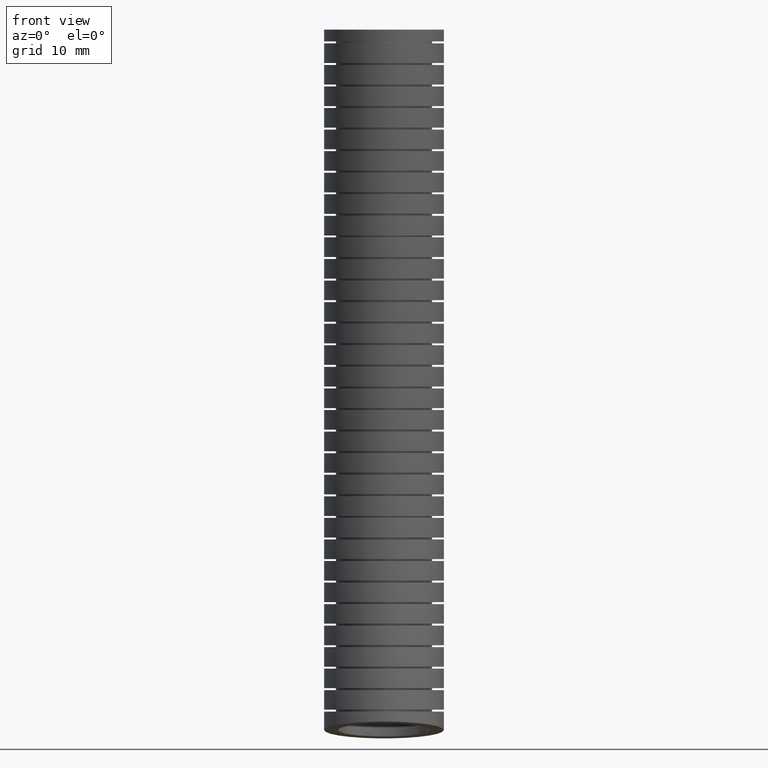
[diagram: clean part render]
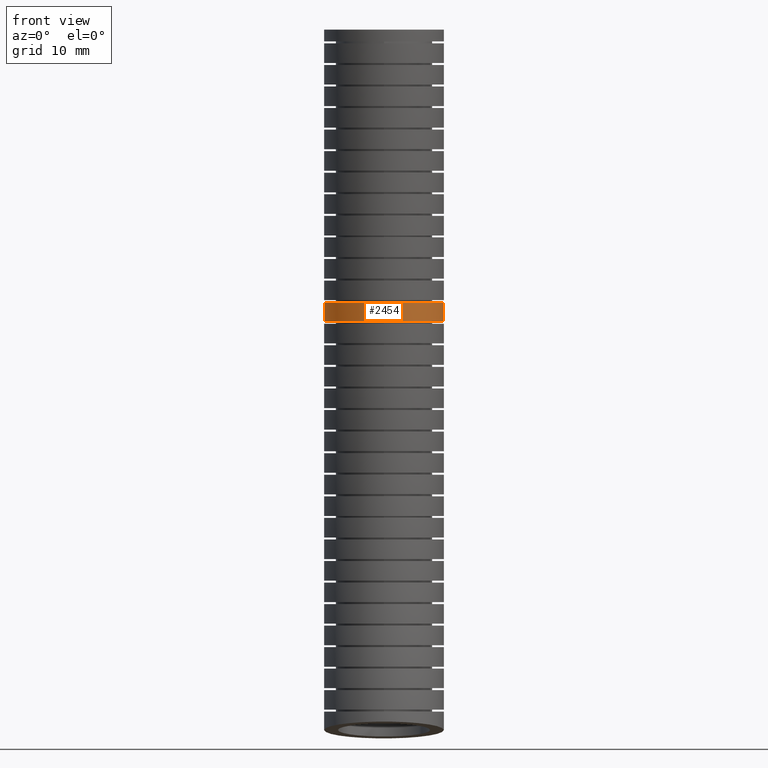
[diagram: same view with one face highlighted and labeled with its STEP entity id]
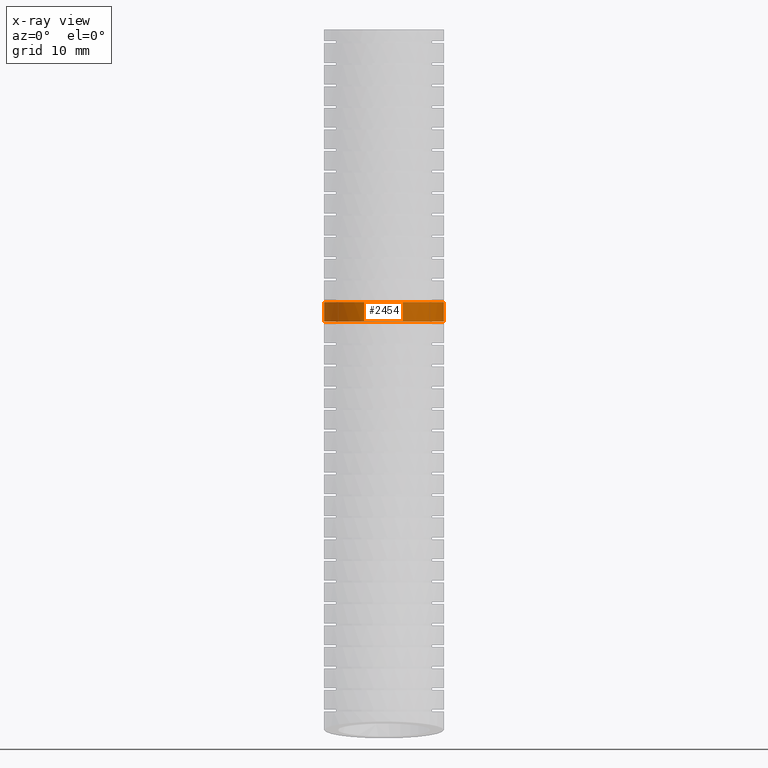
[diagram: x-ray of the same camera — body ghosted, the highlighted face saturated]
A machine part, front view. The second image highlights one B-rep face of the part: STEP entity #2454.
The next image is the same camera in x-ray: the body ghosted, the highlighted face saturated — about 0% of this face is hidden behind the body in this view.
In plain terms, the highlighted face is a freeform B-spline surface patch.
Its self-contained STEP definition (entity closure, byte-faithful):
#2269 = EDGE_LOOP ( 'NONE', ( #6516, #6518, #6512, #4524 ) ) ;
#2454 = ADVANCED_FACE ( 'NONE', ( #6974 ), #7051, .T. ) ;
#2818 = EDGE_CURVE ( 'NONE', #6515, #4520, #7166, .T. ) ;
#4519 = EDGE_CURVE ( 'NONE', #6517, #4520, #14255, .T. ) ;
#4520 = VERTEX_POINT ( 'NONE', #14256 ) ;
#4524 = ORIENTED_EDGE ( 'NONE', *, *, #2818, .F. ) ;
#6512 = ORIENTED_EDGE ( 'NONE', *, *, #4519, .T. ) ;
#6513 = VERTEX_POINT ( 'NONE', #11764 ) ;
#6514 = EDGE_CURVE ( 'NONE', #6515, #6513, #11808, .T. ) ;
#6515 = VERTEX_POINT ( 'NONE', #11823 ) ;
#6516 = ORIENTED_EDGE ( 'NONE', *, *, #6514, .T. ) ;
#6517 = VERTEX_POINT ( 'NONE', #11809 ) ;
#6518 = ORIENTED_EDGE ( 'NONE', *, *, #6519, .T. ) ;
#6519 = EDGE_CURVE ( 'NONE', #6513, #6517, #11848, .T. ) ;
#6806 = CARTESIAN_POINT ( 'NONE',  ( 0.3049999999999999400, 0.6446003076157559300, -2.916786610132277200 ) ) ;
#6807 = CARTESIAN_POINT ( 'NONE',  ( 0.3050000000000000500, 0.6875905811525232500, -1.687708987936889400 ) ) ;
#6808 = CARTESIAN_POINT ( 'NONE',  ( 0.3050000000000000500, 0.6410401296320993300, -0.6751683643642422100 ) ) ;
#6851 = CARTESIAN_POINT ( 'NONE',  ( 0.3049999999999999400, -0.01189670328115252300, -3.380058092153300100 ) ) ;
#6852 = CARTESIAN_POINT ( 'NONE',  ( 0.3049999999999999900, 0.03783273064349424600, -2.858291051460112500 ) ) ;
#6853 = CARTESIAN_POINT ( 'NONE',  ( 0.3049999999999999900, 0.07694042471324438700, -1.669468061939300500 ) ) ;
#6854 = CARTESIAN_POINT ( 'NONE',  ( 0.3050000000000000500, 0.03078003440073750300, -0.6678710777714059700 ) ) ;
#6855 = CARTESIAN_POINT ( 'NONE',  ( 0.3050000000000000500, 0.0000000000000000000, 0.0000000000000000000 ) ) ;
#6856 = CARTESIAN_POINT ( 'NONE',  ( 0.3049999999999999400, 0.5739397472009051300, -3.655771683852579600 ) ) ;
#6857 = CARTESIAN_POINT ( 'NONE',  ( 0.3049999999999999400, 0.5927977391964371900, -3.458550284486119800 ) ) ;
#6974 = FACE_OUTER_BOUND ( 'NONE', #2269, .T. ) ;
#7051 =( BOUNDED_SURFACE ( )  B_SPLINE_SURFACE ( 3, 3, ( 
 ( #7096, #7095, #7094, #7093, #7092, #7091 ),
 ( #7090, #7089, #7088, #7087, #7086, #7085 ),
 ( #7084, #7083, #7082, #7081, #7080, #7079 ),
 ( #7078, #7077, #7076, #7075, #7074, #7073 ),
 ( #7072, #7071, #7070, #7069, #7068, #7067 ),
 ( #7066, #6808, #6807, #6806, #6857, #6856 ),
 ( #6855, #6854, #6853, #6852, #6851, #7167 ) ),
 .UNSPECIFIED., .F., .F., .F. ) 
 B_SPLINE_SURFACE_WITH_KNOTS ( ( 4, 3, 4 ),
 ( 4, 1, 1, 4 ),
 ( 0.0000000000000000000, 0.5000000000000000000, 1.000000000000000000 ),
 ( 0.0000000000000000000, 0.5599999999999999400, 0.8398242262648183400, 1.000000000000000000 ),
 .UNSPECIFIED. ) 
 GEOMETRIC_REPRESENTATION_ITEM ( )  RATIONAL_B_SPLINE_SURFACE ( (
 ( 1.000000000000000000, 1.000000000000000000, 1.000000000000000200, 1.000000000000000000, 1.000000000000000000, 1.000000000000000000),
 ( 0.3333333333333333100, 0.3333333333333333100, 0.3333333333333333100, 0.3333333333333333100, 0.3333333333333333100, 0.3333333333333333100),
 ( 0.3333333333333333100, 0.3333333333333333100, 0.3333333333333333100, 0.3333333333333333100, 0.3333333333333333100, 0.3333333333333333100),
 ( 1.000000000000000000, 1.000000000000000000, 1.000000000000000200, 1.000000000000000000, 1.000000000000000000, 1.000000000000000000),
 ( 0.3333333333333333100, 0.3333333333333333100, 0.3333333333333333100, 0.3333333333333333100, 0.3333333333333333100, 0.3333333333333333100),
 ( 0.3333333333333333100, 0.3333333333333333100, 0.3333333333333333100, 0.3333333333333333100, 0.3333333333333333100, 0.3333333333333333100),
 ( 1.000000000000000000, 1.000000000000000000, 1.000000000000000200, 1.000000000000000000, 1.000000000000000000, 1.000000000000000000) ) ) 
 REPRESENTATION_ITEM ( '' )  SURFACE ( )  );
#7066 = CARTESIAN_POINT ( 'NONE',  ( 0.3050000000000000500, 0.6100000000000001000, 0.0000000000000000000 ) ) ;
#7067 = CARTESIAN_POINT ( 'NONE',  ( -0.3049999999999998800, 0.5739397472009051300, -3.655771683852579600 ) ) ;
#7068 = CARTESIAN_POINT ( 'NONE',  ( -0.3049999999999998800, 0.5927977391964373000, -3.458550284486119800 ) ) ;
#7069 = CARTESIAN_POINT ( 'NONE',  ( -0.3049999999999999400, 0.6446003076157562600, -2.916786610132277200 ) ) ;
#7070 = CARTESIAN_POINT ( 'NONE',  ( -0.3049999999999999400, 0.6875905811525234700, -1.687708987936889400 ) ) ;
#7071 = CARTESIAN_POINT ( 'NONE',  ( -0.3049999999999999400, 0.6410401296320996600, -0.6751683643642422100 ) ) ;
#7072 = CARTESIAN_POINT ( 'NONE',  ( -0.3049999999999999400, 0.6100000000000001000, 0.0000000000000000000 ) ) ;
#7073 = CARTESIAN_POINT ( 'NONE',  ( -0.3049999999999999900, -0.02999999999999996100, -3.569999999999999400 ) ) ;
#7074 = CARTESIAN_POINT ( 'NONE',  ( -0.3049999999999999400, -0.01189670328115248300, -3.380058092153300100 ) ) ;
#7075 = CARTESIAN_POINT ( 'NONE',  ( -0.3049999999999999900, 0.03783273064349428100, -2.858291051460112500 ) ) ;
#7076 = CARTESIAN_POINT ( 'NONE',  ( -0.3049999999999999900, 0.07694042471324441500, -1.669468061939300500 ) ) ;
#7077 = CARTESIAN_POINT ( 'NONE',  ( -0.3050000000000000500, 0.03078003440073754200, -0.6678710777714059700 ) ) ;
#7078 = CARTESIAN_POINT ( 'NONE',  ( -0.3050000000000000500, 3.735172737399427600E-017, 0.0000000000000000000 ) ) ;
#7079 = CARTESIAN_POINT ( 'NONE',  ( -0.3050000000000000500, -0.6339397472009050700, -3.484228316147418800 ) ) ;
#7080 = CARTESIAN_POINT ( 'NONE',  ( -0.3050000000000000500, -0.6165911457587421900, -3.301565899820480900 ) ) ;
#7081 = CARTESIAN_POINT ( 'NONE',  ( -0.3050000000000000500, -0.5689348463287677800, -2.799795492787948300 ) ) ;
#7082 = CARTESIAN_POINT ( 'NONE',  ( -0.3050000000000001000, -0.5337097317260344200, -1.651227135941712300 ) ) ;
#7083 = CARTESIAN_POINT ( 'NONE',  ( -0.3050000000000001600, -0.5794800608306244200, -0.6605737911785694000 ) ) ;
#7084 = CARTESIAN_POINT ( 'NONE',  ( -0.3050000000000001000, -0.6100000000000001000, 0.0000000000000000000 ) ) ;
#7085 = CARTESIAN_POINT ( 'NONE',  ( 0.3049999999999999400, -0.6339397472009050700, -3.484228316147418800 ) ) ;
#7086 = CARTESIAN_POINT ( 'NONE',  ( 0.3049999999999999400, -0.6165911457587421900, -3.301565899820480900 ) ) ;
#7087 = CARTESIAN_POINT ( 'NONE',  ( 0.3049999999999999400, -0.5689348463287677800, -2.799795492787948300 ) ) ;
#7088 = CARTESIAN_POINT ( 'NONE',  ( 0.3050000000000000500, -0.5337097317260344200, -1.651227135941712300 ) ) ;
#7089 = CARTESIAN_POINT ( 'NONE',  ( 0.3050000000000000500, -0.5794800608306244200, -0.6605737911785694000 ) ) ;
#7090 = CARTESIAN_POINT ( 'NONE',  ( 0.3050000000000000500, -0.6100000000000001000, 0.0000000000000000000 ) ) ;
#7091 = CARTESIAN_POINT ( 'NONE',  ( 0.3049999999999999900, -0.02999999999999999900, -3.569999999999999400 ) ) ;
#7092 = CARTESIAN_POINT ( 'NONE',  ( 0.3049999999999999400, -0.01189670328115252300, -3.380058092153300100 ) ) ;
#7093 = CARTESIAN_POINT ( 'NONE',  ( 0.3049999999999999900, 0.03783273064349424600, -2.858291051460112500 ) ) ;
#7094 = CARTESIAN_POINT ( 'NONE',  ( 0.3049999999999999900, 0.07694042471324438700, -1.669468061939300500 ) ) ;
#7095 = CARTESIAN_POINT ( 'NONE',  ( 0.3050000000000000500, 0.03078003440073750300, -0.6678710777714059700 ) ) ;
#7096 = CARTESIAN_POINT ( 'NONE',  ( 0.3050000000000000500, 0.0000000000000000000, 0.0000000000000000000 ) ) ;
#7162 = CARTESIAN_POINT ( 'NONE',  ( 0.3050000000000000500, 0.05421608436069735900, -1.489025684703928300 ) ) ;
#7163 = CARTESIAN_POINT ( 'NONE',  ( 0.3050000000000000500, 0.05364840844215725000, -1.455701533475108200 ) ) ;
#7164 = CARTESIAN_POINT ( 'NONE',  ( 0.3050000000000000500, 0.05301556047757510800, -1.422374746923287500 ) ) ;
#7165 = CARTESIAN_POINT ( 'NONE',  ( 0.3050000000000000500, 0.05232191951843480300, -1.389045502121618800 ) ) ;
#7166 = B_SPLINE_CURVE_WITH_KNOTS ( 'NONE', 3,
 ( #7165, #7164, #7163, #7162 ),
 .UNSPECIFIED., .F., .F.,
 ( 4, 4 ),
 ( 0.3883637733354464200, 0.4163384661891965100 ),
 .UNSPECIFIED. ) ;
#7167 = CARTESIAN_POINT ( 'NONE',  ( 0.3049999999999999900, -0.02999999999999999900, -3.569999999999999400 ) ) ;
#11764 = CARTESIAN_POINT ( 'NONE',  ( -0.3049999999999999900, 0.05232191952642160900, -1.389045502313499800 ) ) ;
#11808 = B_SPLINE_CURVE_WITH_KNOTS ( 'NONE', 3,
 ( #11822, #11821, #11820, #11819, #11818, #11817, #11816, #11815, #11814, #11813, #11812, #11811, #11879, #11878, #11877, #11876, #11875, #11874, #11873, #11872, #11871, #11870, #11869, #11868, #11867, #11866, #11865, #11864, #11863, #11862, #11861, #11860, #11859, #11858, #11857, #11856, #11855, #11854, #11853, #11852, #11851, #11850, #11849 ),
 .UNSPECIFIED., .F., .F.,
 ( 4, 2, 2, 2, 2, 2, 2, 2, 2, 2, 2, 2, 2, 2, 2, 2, 1, 2, 2, 2, 2, 4 ),
 ( 0.0000000000000000000, 0.0007647462825209248000, 0.001529492565041849600, 0.003058985130083698300, 0.004588477695125547900, 0.006117970260167396700, 0.006882716542688319300, 0.007647462825209241900, 0.009176955390251087200, 0.01070644795529293100, 0.01147119423781385200, 0.01223594052033477400, 0.01376543308537661800, 0.01529492565041846300, 0.01682441821546030700, 0.01758916449798123000, 0.01835391078050215000, 0.01911865706302307400, 0.01988340334554399400, 0.02141289591058584100, 0.02294238847562768100, 0.02447188104066952800 ),
 .UNSPECIFIED. ) ;
#11809 = CARTESIAN_POINT ( 'NONE',  ( -0.3050000000000000500, 0.05421608436723624600, -1.489025684895853900 ) ) ;
#11811 = CARTESIAN_POINT ( 'NONE',  ( 0.2084097225104659900, -0.1704479157289127700, -1.389045502313499800 ) ) ;
#11812 = CARTESIAN_POINT ( 'NONE',  ( 0.2296334633827887300, -0.1492740162219304800, -1.389045502313500000 ) ) ;
#11813 = CARTESIAN_POINT ( 'NONE',  ( 0.2422496748219648000, -0.1339380068779896200, -1.389045502313500000 ) ) ;
#11814 = CARTESIAN_POINT ( 'NONE',  ( 0.2644446721496448400, -0.1008484969999029900, -1.389045502313500400 ) ) ;
#11815 = CARTESIAN_POINT ( 'NONE',  ( 0.2740380539219657900, -0.08295842190282332100, -1.389045502313498900 ) ) ;
#11816 = CARTESIAN_POINT ( 'NONE',  ( 0.2893049601783478900, -0.04622398203081590200, -1.389045502313499100 ) ) ;
#11817 = CARTESIAN_POINT ( 'NONE',  ( 0.2951135582507454200, -0.02722155613496509900, -1.389045502313499100 ) ) ;
#11818 = CARTESIAN_POINT ( 'NONE',  ( 0.3010247587162014300, 0.002257313261923694500, -1.389045502313499800 ) ) ;
#11819 = CARTESIAN_POINT ( 'NONE',  ( 0.3025189250417423800, 0.01224536203740585400, -1.389045502313500000 ) ) ;
#11820 = CARTESIAN_POINT ( 'NONE',  ( 0.3045017983950704100, 0.03222177630081285400, -1.389045502313500000 ) ) ;
#11821 = CARTESIAN_POINT ( 'NONE',  ( 0.3049999999999999900, 0.04225108845096481300, -1.389045502121618600 ) ) ;
#11822 = CARTESIAN_POINT ( 'NONE',  ( 0.3050000000000000500, 0.05232191951843480300, -1.389045502121618800 ) ) ;
#11823 = CARTESIAN_POINT ( 'NONE',  ( 0.3050000000000000500, 0.05232191951843480300, -1.389045502121618800 ) ) ;
#11844 = CARTESIAN_POINT ( 'NONE',  ( -0.3050000000000000500, 0.05421608436723624600, -1.489025684895853900 ) ) ;
#11845 = CARTESIAN_POINT ( 'NONE',  ( -0.3050000000000000500, 0.05364840844567772500, -1.455701533667084200 ) ) ;
#11846 = CARTESIAN_POINT ( 'NONE',  ( -0.3050000000000000500, 0.05301556048133715400, -1.422374747115257900 ) ) ;
#11847 = CARTESIAN_POINT ( 'NONE',  ( -0.3049999999999999900, 0.05232191952642160900, -1.389045502313499800 ) ) ;
#11848 = B_SPLINE_CURVE_WITH_KNOTS ( 'NONE', 3,
 ( #11847, #11846, #11845, #11844 ),
 .UNSPECIFIED., .F., .F.,
 ( 4, 4 ),
 ( 0.3883637733891543400, 0.4163384662429175400 ),
 .UNSPECIFIED. ) ;
#11849 = CARTESIAN_POINT ( 'NONE',  ( -0.3049999999999999900, 0.05232191952642160900, -1.389045502313499800 ) ) ;
#11850 = CARTESIAN_POINT ( 'NONE',  ( -0.3050000000000000500, 0.03235061761692696600, -1.389045502313499800 ) ) ;
#11851 = CARTESIAN_POINT ( 'NONE',  ( -0.3030547011316457900, 0.01258963551858227800, -1.389045502313500200 ) ) ;
#11852 = CARTESIAN_POINT ( 'NONE',  ( -0.2952960616666811500, -0.02651412774300046200, -1.389045502313500000 ) ) ;
#11853 = CARTESIAN_POINT ( 'NONE',  ( -0.2894038837500099700, -0.04593191317384547800, -1.389045502313500900 ) ) ;
#11854 = CARTESIAN_POINT ( 'NONE',  ( -0.2741808720314731800, -0.08266797402842358800, -1.389045502313501100 ) ) ;
#11855 = CARTESIAN_POINT ( 'NONE',  ( -0.2648275160943030500, -0.1002048058409058900, -1.389045502313499800 ) ) ;
#11856 = CARTESIAN_POINT ( 'NONE',  ( -0.2481142375924746400, -0.1252296280972169100, -1.389045502313499800 ) ) ;
#11857 = CARTESIAN_POINT ( 'NONE',  ( -0.2421040489027248800, -0.1333279708276085300, -1.389045502313499800 ) ) ;
#11858 = CARTESIAN_POINT ( 'NONE',  ( -0.2294462158748580300, -0.1487426840958187300, -1.389045502313500000 ) ) ;
#11859 = CARTESIAN_POINT ( 'NONE',  ( -0.2160930092205240700, -0.1634656006304305300, -1.389045502313500200 ) ) ;
#11860 = CARTESIAN_POINT ( 'NONE',  ( -0.2013681554874807200, -0.1768239256237688600, -1.389045502313499100 ) ) ;
#11861 = CARTESIAN_POINT ( 'NONE',  ( -0.1859471637964834100, -0.1894896934836233200, -1.389045502313498900 ) ) ;
#11862 = CARTESIAN_POINT ( 'NONE',  ( -0.1778409333930519900, -0.1955064096423545800, -1.389045502313500200 ) ) ;
#11863 = CARTESIAN_POINT ( 'NONE',  ( -0.1528365171963746700, -0.2122110327475742500, -1.389045502313500000 ) ) ;
#11864 = CARTESIAN_POINT ( 'NONE',  ( -0.1353064745470885800, -0.2215682367083218500, -1.389045502313498900 ) ) ;
#11865 = CARTESIAN_POINT ( 'NONE',  ( -0.09856682179860691600, -0.2368096146385376400, -1.389045502313498900 ) ) ;
#11866 = CARTESIAN_POINT ( 'NONE',  ( -0.07914650337540139700, -0.2427123323944109800, -1.389045502313499300 ) ) ;
#11867 = CARTESIAN_POINT ( 'NONE',  ( -0.04006400622659137000, -0.2504951413069898500, -1.389045502313499100 ) ) ;
#11868 = CARTESIAN_POINT ( 'NONE',  ( -0.02030399067590805600, -0.2524594534285998200, -1.389045502313499800 ) ) ;
#11869 = CARTESIAN_POINT ( 'NONE',  ( 0.009666915923338669300, -0.2524912101205492600, -1.389045502313499300 ) ) ;
#11870 = CARTESIAN_POINT ( 'NONE',  ( 0.01976477709641358600, -0.2520045345028234500, -1.389045502313498700 ) ) ;
#11871 = CARTESIAN_POINT ( 'NONE',  ( 0.03968571089414859400, -0.2500550439567179000, -1.389045502313498000 ) ) ;
#11872 = CARTESIAN_POINT ( 'NONE',  ( 0.04953610753086221100, -0.2485976609145654500, -1.389045502313500000 ) ) ;
#11873 = CARTESIAN_POINT ( 'NONE',  ( 0.07876454258800495700, -0.2428102913718709600, -1.389045502313500000 ) ) ;
#11874 = CARTESIAN_POINT ( 'NONE',  ( 0.09782299562001835200, -0.2370789819718887900, -1.389045502313500400 ) ) ;
#11875 = CARTESIAN_POINT ( 'NONE',  ( 0.1350496861007880500, -0.2217129322659081600, -1.389045502313500200 ) ) ;
#11876 = CARTESIAN_POINT ( 'NONE',  ( 0.1526131524629214500, -0.2123258799298753400, -1.389045502313500000 ) ) ;
#11877 = CARTESIAN_POINT ( 'NONE',  ( 0.1774108114600506400, -0.1958103901003544200, -1.389045502313499800 ) ) ;
#11878 = CARTESIAN_POINT ( 'NONE',  ( 0.1854190213926752200, -0.1898954963651636200, -1.389045502313499800 ) ) ;
#11879 = CARTESIAN_POINT ( 'NONE',  ( 0.2009084510013776400, -0.1772277432923964900, -1.389045502313499800 ) ) ;
#14237 = CARTESIAN_POINT ( 'NONE',  ( -0.1777598687523139500, -0.1936479794925812200, -1.489025684895852700 ) ) ;
#14238 = CARTESIAN_POINT ( 'NONE',  ( -0.1858580386931079400, -0.1876465384245686000, -1.489025684895852100 ) ) ;
#14239 = CARTESIAN_POINT ( 'NONE',  ( -0.2013675031582087000, -0.1749141116518432600, -1.489025684895852100 ) ) ;
#14240 = CARTESIAN_POINT ( 'NONE',  ( -0.2087529609496515700, -0.1682120306037487900, -1.489025684895853400 ) ) ;
#14241 = CARTESIAN_POINT ( 'NONE',  ( -0.2298323678869302600, -0.1471262498616553200, -1.489025684895853400 ) ) ;
#14242 = CARTESIAN_POINT ( 'NONE',  ( -0.2424596820647801900, -0.1317724093922916200, -1.489025684895853200 ) ) ;
#14243 = CARTESIAN_POINT ( 'NONE',  ( -0.2591961975208945700, -0.1067366211637393200, -1.489025684895853400 ) ) ;
#14244 = CARTESIAN_POINT ( 'NONE',  ( -0.2643705058228538700, -0.09809675917652731200, -1.489025684895851900 ) ) ;
#14245 = CARTESIAN_POINT ( 'NONE',  ( -0.2737631854646735400, -0.08051328911359718900, -1.489025684895852100 ) ) ;
#14246 = CARTESIAN_POINT ( 'NONE',  ( -0.2822537650174492000, -0.06254751969381007500, -1.489025684895855600 ) ) ;
#14247 = CARTESIAN_POINT ( 'NONE',  ( -0.2889614026343148600, -0.04382616055211759100, -1.489025684895852500 ) ) ;
#14248 = CARTESIAN_POINT ( 'NONE',  ( -0.2947623703535949300, -0.02472056542271354800, -1.489025684895852700 ) ) ;
#14249 = CARTESIAN_POINT ( 'NONE',  ( -0.2972184029770265100, -0.01492000450475310300, -1.489025684895852100 ) ) ;
#14250 = CARTESIAN_POINT ( 'NONE',  ( -0.3030694500569378600, 0.01454980648471295100, -1.489025684895852100 ) ) ;
#14251 = CARTESIAN_POINT ( 'NONE',  ( -0.3050000000000000500, 0.03432158505441641700, -1.489025684895852100 ) ) ;
#14252 = CARTESIAN_POINT ( 'NONE',  ( -0.3050000000000000500, 0.05421608436723624600, -1.489025684895853900 ) ) ;
#14255 = B_SPLINE_CURVE_WITH_KNOTS ( 'NONE', 3,
 ( #14252, #14251, #14250, #14249, #14248, #14247, #14246, #14245, #14244, #14243, #14242, #14241, #14240, #14239, #14238, #14237, #14312, #14311, #14310, #14309, #14308, #14307, #14306, #14305, #14304, #14303, #14302, #14301, #14300, #14299, #14298, #14297, #14296, #14295, #14294, #14293, #14292, #14291, #14290, #14289, #14288, #14287, #14286, #14285, #14284 ),
 .UNSPECIFIED., .F., .F.,
 ( 4, 2, 2, 1, 2, 2, 2, 2, 2, 2, 2, 2, 2, 2, 2, 2, 2, 2, 2, 2, 2, 2, 4 ),
 ( 0.02421232674167676800, 0.02572523604084389300, 0.02648169069042745300, 0.02723814534001101400, 0.02799459998959457500, 0.02875105463917813900, 0.03026396393834526000, 0.03102041858792882100, 0.03177687323751238200, 0.03328978253667951000, 0.03404623718626306700, 0.03480269183584663200, 0.03631560113501376000, 0.03782851043418088100, 0.03858496508376445300, 0.03934141973334801000, 0.04085432903251513800, 0.04236723833168226600, 0.04388014763084939500, 0.04463660228043295200, 0.04539305693001652300, 0.04690596622918365200, 0.04841887552835077300 ),
 .UNSPECIFIED. ) ;
#14256 = CARTESIAN_POINT ( 'NONE',  ( 0.3050000000000000500, 0.05421608436069735900, -1.489025684703928300 ) ) ;
#14284 = CARTESIAN_POINT ( 'NONE',  ( 0.3050000000000000500, 0.05421608436069735900, -1.489025684703928300 ) ) ;
#14285 = CARTESIAN_POINT ( 'NONE',  ( 0.3050000000000001000, 0.03407568133995398500, -1.489025684703928000 ) ) ;
#14286 = CARTESIAN_POINT ( 'NONE',  ( 0.3030216369459225500, 0.01414432663850287100, -1.489025684895852100 ) ) ;
#14287 = CARTESIAN_POINT ( 'NONE',  ( 0.2951236289078400500, -0.02530196185107523600, -1.489025684895852100 ) ) ;
#14288 = CARTESIAN_POINT ( 'NONE',  ( 0.2892721107654845900, -0.04441157559440189100, -1.489025684895851400 ) ) ;
#14289 = CARTESIAN_POINT ( 'NONE',  ( 0.2778350605490628700, -0.07191258474399785100, -1.489025684895851400 ) ) ;
#14290 = CARTESIAN_POINT ( 'NONE',  ( 0.2735729517324007000, -0.08090029089081424200, -1.489025684895852500 ) ) ;
#14291 = CARTESIAN_POINT ( 'NONE',  ( 0.2641323052530696900, -0.09851036764410542300, -1.489025684895851900 ) ) ;
#14292 = CARTESIAN_POINT ( 'NONE',  ( 0.2589223356639635500, -0.1071741941605285600, -1.489025684895853400 ) ) ;
#14293 = CARTESIAN_POINT ( 'NONE',  ( 0.2421993109290031000, -0.1321039992998810100, -1.489025684895853900 ) ) ;
#14294 = CARTESIAN_POINT ( 'NONE',  ( 0.2295671103049798400, -0.1474307020776034200, -1.489025684895854100 ) ) ;
#14295 = CARTESIAN_POINT ( 'NONE',  ( 0.2013857929110775500, -0.1755414610489222400, -1.489025684895853900 ) ) ;
#14296 = CARTESIAN_POINT ( 'NONE',  ( 0.1856715793351176300, -0.1883986407168176900, -1.489025684895853400 ) ) ;
#14297 = CARTESIAN_POINT ( 'NONE',  ( 0.1525344430418975300, -0.2104585654832809000, -1.489025684895853900 ) ) ;
#14298 = CARTESIAN_POINT ( 'NONE',  ( 0.1350109059070681000, -0.2198061221087363200, -1.489025684895851900 ) ) ;
#14299 = CARTESIAN_POINT ( 'NONE',  ( 0.1072709427494458500, -0.2312647308131759400, -1.489025684895852500 ) ) ;
#14300 = CARTESIAN_POINT ( 'NONE',  ( 0.09774734477647516200, -0.2346587750329603700, -1.489025684895853400 ) ) ;
#14301 = CARTESIAN_POINT ( 'NONE',  ( 0.07861515021363975300, -0.2404327315692944600, -1.489025684895853000 ) ) ;
#14302 = CARTESIAN_POINT ( 'NONE',  ( 0.06896139849960493400, -0.2428347864409607400, -1.489025684895853200 ) ) ;
#14303 = CARTESIAN_POINT ( 'NONE',  ( 0.03974221414852265700, -0.2486140305416446900, -1.489025684895853200 ) ) ;
#14304 = CARTESIAN_POINT ( 'NONE',  ( 0.01985236803524128100, -0.2505780864545639200, -1.489025684895851900 ) ) ;
#14305 = CARTESIAN_POINT ( 'NONE',  ( -0.02035490948992152400, -0.2505449867896451500, -1.489025684895851900 ) ) ;
#14306 = CARTESIAN_POINT ( 'NONE',  ( -0.04014430954397720000, -0.2485618588494079900, -1.489025684895852500 ) ) ;
#14307 = CARTESIAN_POINT ( 'NONE',  ( -0.06937333351857899500, -0.2427391960045312300, -1.489025684895852500 ) ) ;
#14308 = CARTESIAN_POINT ( 'NONE',  ( -0.07903994055058474700, -0.2403201736138576300, -1.489025684895853200 ) ) ;
#14309 = CARTESIAN_POINT ( 'NONE',  ( -0.09821635553463423100, -0.2345008441288541900, -1.489025684895853200 ) ) ;
#14310 = CARTESIAN_POINT ( 'NONE',  ( -0.1077224689308376600, -0.2310940392627743900, -1.489025684895853000 ) ) ;
#14311 = CARTESIAN_POINT ( 'NONE',  ( -0.1353762383817124800, -0.2196224569397510500, -1.489025684895853000 ) ) ;
#14312 = CARTESIAN_POINT ( 'NONE',  ( -0.1528847737553729300, -0.2102594352187278900, -1.489025684895853000 ) ) ;